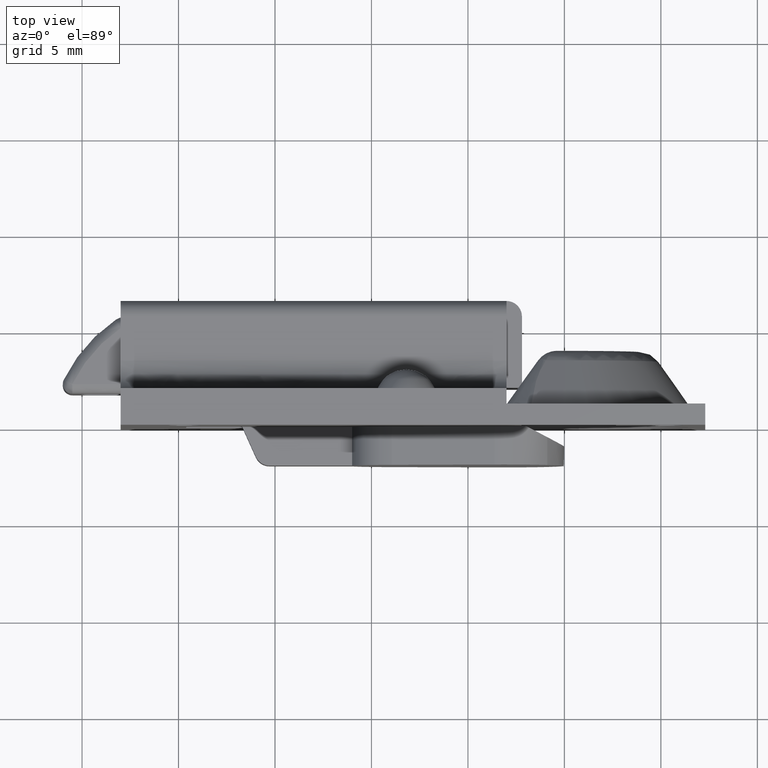
[diagram: clean part render]
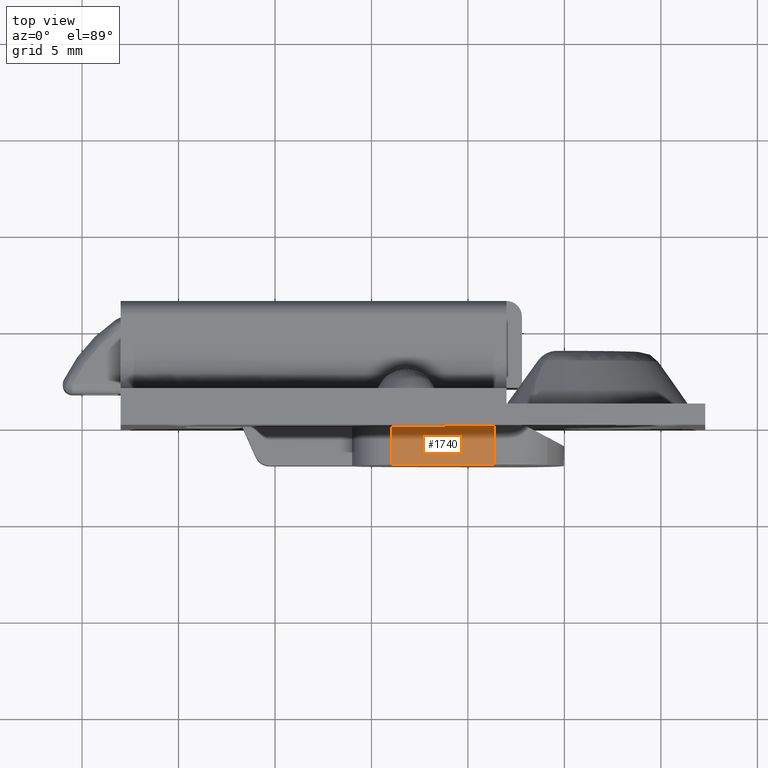
[diagram: same view with one face highlighted and labeled with its STEP entity id]
A machine part, top view. The second image highlights one B-rep face of the part: STEP entity #1740.
In plain terms, the highlighted face is a freeform B-spline surface patch.
Its self-contained STEP definition (entity closure, byte-faithful):
#1519=CARTESIAN_POINT('',(11.369197900665499,-2.0,4.215267344383145));
#1520=VERTEX_POINT('',#1519);
#1534=CARTESIAN_POINT('',(6.049462669785030,-2.0,3.347027620360990));
#1535=VERTEX_POINT('',#1534);
#1536=CARTESIAN_POINT('',(11.369197900665499,-2.0,4.215267344383145));
#1537=CARTESIAN_POINT('',(6.049462669785030,-2.0,3.347027620360990));
#1538=QUASI_UNIFORM_CURVE('',1,(#1536,#1537),.UNSPECIFIED.,.F.,.U.);
#1539=EDGE_CURVE('',#1520,#1535,#1538,.T.);
#1695=CARTESIAN_POINT('',(6.049462669785030,0.0,3.347027620360990));
#1696=VERTEX_POINT('',#1695);
#1697=CARTESIAN_POINT('',(6.049462669785030,0.0,3.347027620360990));
#1698=CARTESIAN_POINT('',(6.049462669785030,-2.0,3.347027620360990));
#1699=QUASI_UNIFORM_CURVE('',1,(#1697,#1698),.UNSPECIFIED.,.F.,.U.);
#1700=EDGE_CURVE('',#1696,#1535,#1699,.T.);
#1719=CARTESIAN_POINT('',(5.783742024194797,-2.099899996123612,3.303659067231688));
#1720=CARTESIAN_POINT('',(11.634918403569319,-2.099899996123612,4.258635874224441));
#1721=CARTESIAN_POINT('',(5.783742024194797,0.099900049767792,3.303659067231688));
#1722=CARTESIAN_POINT('',(11.634918403569319,0.099900049767792,4.258635874224441));
#1723=B_SPLINE_SURFACE_WITH_KNOTS('',1,1,((#1719,#1721),(#1720,#1722)),.UNSPECIFIED.,.F.,.F.,.U.,(2,2),(2,2),(0.0,5.928595594611290),(0.0,2.199800045891404),.UNSPECIFIED.);
#1724=ORIENTED_EDGE('',*,*,#1539,.F.);
#1725=CARTESIAN_POINT('',(11.369197900665499,0.0,4.215267344383145));
#1726=VERTEX_POINT('',#1725);
#1727=CARTESIAN_POINT('',(11.369197900665499,0.0,4.215267344383145));
#1728=CARTESIAN_POINT('',(11.369197900665499,-2.0,4.215267344383145));
#1729=QUASI_UNIFORM_CURVE('',1,(#1727,#1728),.UNSPECIFIED.,.F.,.U.);
#1730=EDGE_CURVE('',#1726,#1520,#1729,.T.);
#1731=ORIENTED_EDGE('',*,*,#1730,.F.);
#1732=CARTESIAN_POINT('',(11.369197900665499,0.0,4.215267344383145));
#1733=CARTESIAN_POINT('',(6.049462669785030,0.0,3.347027620360990));
#1734=QUASI_UNIFORM_CURVE('',1,(#1732,#1733),.UNSPECIFIED.,.F.,.U.);
#1735=EDGE_CURVE('',#1726,#1696,#1734,.T.);
#1736=ORIENTED_EDGE('',*,*,#1735,.T.);
#1737=ORIENTED_EDGE('',*,*,#1700,.T.);
#1738=EDGE_LOOP('',(#1724,#1731,#1736,#1737));
#1739=FACE_OUTER_BOUND('',#1738,.T.);
#1740=ADVANCED_FACE('',(#1739),#1723,.T.);